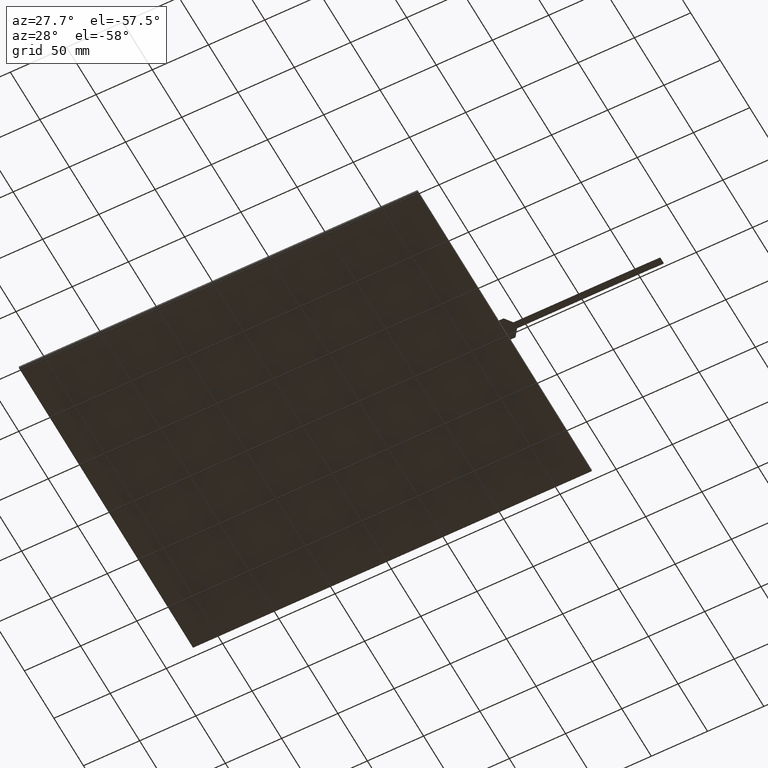
[diagram: clean part render]
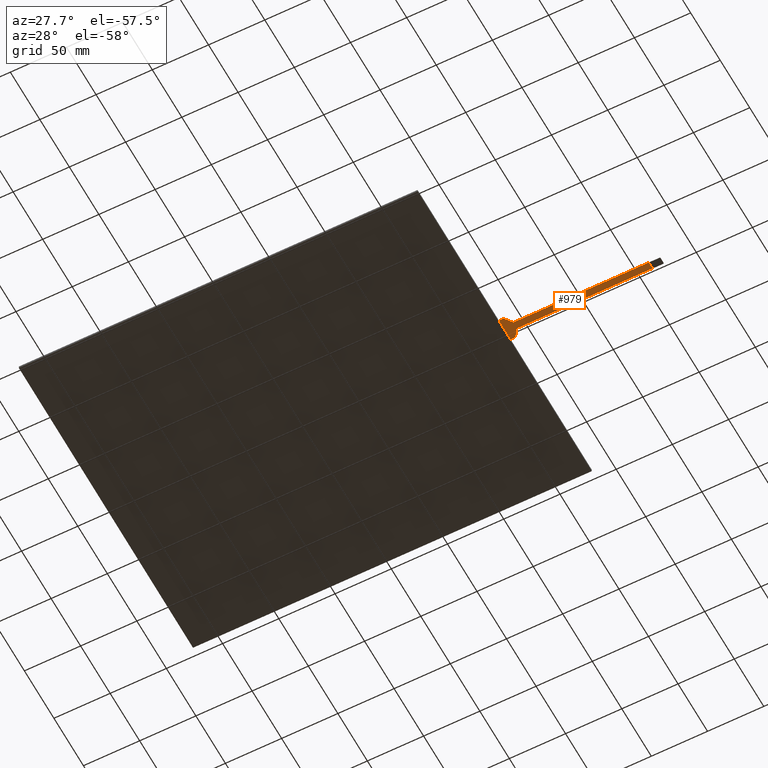
[diagram: same view with one face highlighted and labeled with its STEP entity id]
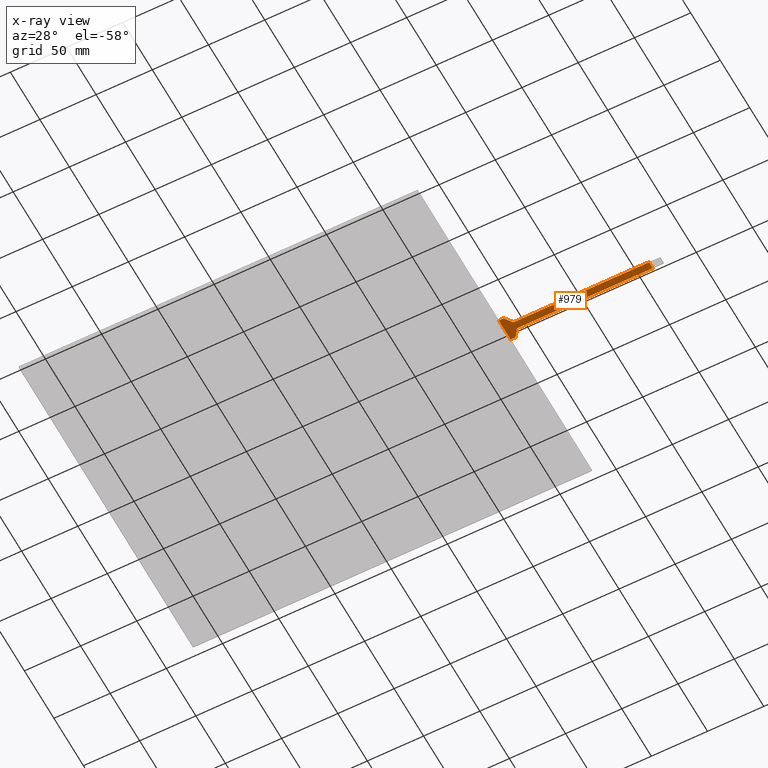
[diagram: x-ray of the same camera — body ghosted, the highlighted face saturated]
A machine part, auxiliary view. The second image highlights one B-rep face of the part: STEP entity #979.
The next image is the same camera in x-ray: the body ghosted, the highlighted face saturated — about 0% of this face is hidden behind the body in this view.
In plain terms, the highlighted planar face has unit normal (0, 0, -1).
Its self-contained STEP definition (entity closure, byte-faithful):
#51=PLANE('',#1054);
#98=FACE_OUTER_BOUND('',#149,.T.);
#149=EDGE_LOOP('',(#713,#714,#715,#716,#717,#718,#719,#720,#721,#722,#723,
#724));
#207=LINE('',#1386,#333);
#210=LINE('',#1398,#336);
#213=LINE('',#1403,#339);
#214=LINE('',#1405,#340);
#215=LINE('',#1407,#341);
#216=LINE('',#1411,#342);
#217=LINE('',#1415,#343);
#218=LINE('',#1416,#344);
#333=VECTOR('',#1127,10.);
#336=VECTOR('',#1138,10.);
#339=VECTOR('',#1143,10.);
#340=VECTOR('',#1144,10.);
#341=VECTOR('',#1145,10.);
#342=VECTOR('',#1148,10.);
#343=VECTOR('',#1151,10.);
#344=VECTOR('',#1152,10.);
#452=CIRCLE('',#1048,1.);
#453=CIRCLE('',#1051,1.);
#455=CIRCLE('',#1055,1.);
#456=CIRCLE('',#1056,1.);
#465=VERTEX_POINT('',#1368);
#466=VERTEX_POINT('',#1370);
#472=VERTEX_POINT('',#1384);
#473=VERTEX_POINT('',#1388);
#474=VERTEX_POINT('',#1389);
#477=VERTEX_POINT('',#1397);
#479=VERTEX_POINT('',#1404);
#480=VERTEX_POINT('',#1406);
#481=VERTEX_POINT('',#1408);
#482=VERTEX_POINT('',#1410);
#483=VERTEX_POINT('',#1412);
#484=VERTEX_POINT('',#1414);
#557=EDGE_CURVE('',#465,#466,#452,.T.);
#565=EDGE_CURVE('',#465,#472,#207,.T.);
#566=EDGE_CURVE('',#473,#474,#453,.T.);
#570=EDGE_CURVE('',#477,#474,#210,.T.);
#573=EDGE_CURVE('',#473,#466,#213,.T.);
#574=EDGE_CURVE('',#472,#479,#214,.T.);
#575=EDGE_CURVE('',#479,#480,#215,.T.);
#576=EDGE_CURVE('',#481,#480,#455,.T.);
#577=EDGE_CURVE('',#481,#482,#216,.T.);
#578=EDGE_CURVE('',#483,#482,#456,.T.);
#579=EDGE_CURVE('',#483,#484,#217,.T.);
#580=EDGE_CURVE('',#477,#484,#218,.T.);
#713=ORIENTED_EDGE('',*,*,#566,.F.);
#714=ORIENTED_EDGE('',*,*,#573,.T.);
#715=ORIENTED_EDGE('',*,*,#557,.F.);
#716=ORIENTED_EDGE('',*,*,#565,.T.);
#717=ORIENTED_EDGE('',*,*,#574,.T.);
#718=ORIENTED_EDGE('',*,*,#575,.T.);
#719=ORIENTED_EDGE('',*,*,#576,.F.);
#720=ORIENTED_EDGE('',*,*,#577,.T.);
#721=ORIENTED_EDGE('',*,*,#578,.F.);
#722=ORIENTED_EDGE('',*,*,#579,.T.);
#723=ORIENTED_EDGE('',*,*,#580,.F.);
#724=ORIENTED_EDGE('',*,*,#570,.T.);
#979=ADVANCED_FACE('',(#98),#51,.T.);
#1048=AXIS2_PLACEMENT_3D('',#1371,#1116,#1117);
#1051=AXIS2_PLACEMENT_3D('',#1390,#1130,#1131);
#1054=AXIS2_PLACEMENT_3D('',#1402,#1141,#1142);
#1055=AXIS2_PLACEMENT_3D('',#1409,#1146,#1147);
#1056=AXIS2_PLACEMENT_3D('',#1413,#1149,#1150);
#1116=DIRECTION('center_axis',(0.,0.,-1.));
#1117=DIRECTION('ref_axis',(-0.453354005316959,-0.891330548036513,0.));
#1127=DIRECTION('',(1.,0.,0.));
#1130=DIRECTION('center_axis',(0.,0.,1.));
#1131=DIRECTION('ref_axis',(0.453354005316927,0.891330548036529,0.));
#1138=DIRECTION('',(1.,0.,0.));
#1141=DIRECTION('center_axis',(0.,0.,-1.));
#1142=DIRECTION('ref_axis',(-1.,0.,0.));
#1143=DIRECTION('',(0.58894029172616,-0.808176548027413,0.));
#1144=DIRECTION('',(0.,-1.,0.));
#1145=DIRECTION('',(-1.,0.,0.));
#1146=DIRECTION('center_axis',(0.,0.,-1.));
#1147=DIRECTION('ref_axis',(-0.453354005316959,0.891330548036513,0.));
#1148=DIRECTION('',(-0.58894029172616,-0.808176548027413,0.));
#1149=DIRECTION('center_axis',(0.,0.,1.));
#1150=DIRECTION('ref_axis',(0.453354005316927,-0.891330548036529,0.));
#1151=DIRECTION('',(-1.,0.,0.));
#1152=DIRECTION('',(0.,-1.,0.));
#1368=CARTESIAN_POINT('',(189.508626127889,3.12500000000001,-0.3));
#1370=CARTESIAN_POINT('',(188.700449579862,3.53605970827385,-0.3));
#1371=CARTESIAN_POINT('Origin',(189.508626127889,4.12500000000001,-0.3));
#1384=CARTESIAN_POINT('',(309.6,3.12500000000001,-0.3));
#1386=CARTESIAN_POINT('',(319.6,3.12500000000001,-0.3));
#1388=CARTESIAN_POINT('',(184.289550420138,9.58894029172617,-0.3));
#1389=CARTESIAN_POINT('',(183.481373872111,10.,-0.3));
#1390=CARTESIAN_POINT('Origin',(183.481373872111,9.00000000000001,-0.3));
#1397=CARTESIAN_POINT('',(179.6,10.,-0.3));
#1398=CARTESIAN_POINT('',(183.99,10.,-0.3));
#1402=CARTESIAN_POINT('Origin',(249.6,8.88178419700125E-15,-0.3));
#1403=CARTESIAN_POINT('',(189.,3.12500000000001,-0.3));
#1404=CARTESIAN_POINT('',(309.6,-3.12499999999999,-0.3));
#1405=CARTESIAN_POINT('',(309.6,-1.56249999999999,-0.3));
#1406=CARTESIAN_POINT('',(189.508626127889,-3.12499999999999,-0.3));
#1407=CARTESIAN_POINT('',(189.,-3.12499999999999,-0.3));
#1408=CARTESIAN_POINT('',(188.700449579862,-3.53605970827383,-0.3));
#1409=CARTESIAN_POINT('Origin',(189.508626127889,-4.12499999999999,-0.3));
#1410=CARTESIAN_POINT('',(184.289550420138,-9.58894029172615,-0.3));
#1411=CARTESIAN_POINT('',(183.99,-9.99999999999999,-0.3));
#1412=CARTESIAN_POINT('',(183.481373872111,-9.99999999999999,-0.3));
#1413=CARTESIAN_POINT('Origin',(183.481373872111,-8.99999999999999,-0.3));
#1414=CARTESIAN_POINT('',(179.6,-9.99999999999999,-0.3));
#1415=CARTESIAN_POINT('',(179.6,-9.99999999999999,-0.3));
#1416=CARTESIAN_POINT('',(179.6,73.75,-0.3));